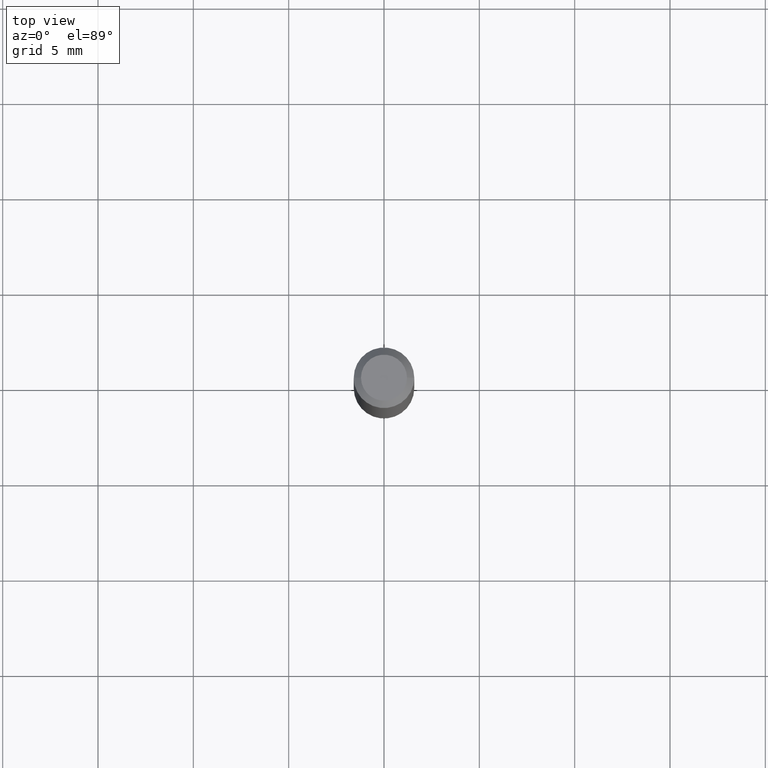
[diagram: clean part render]
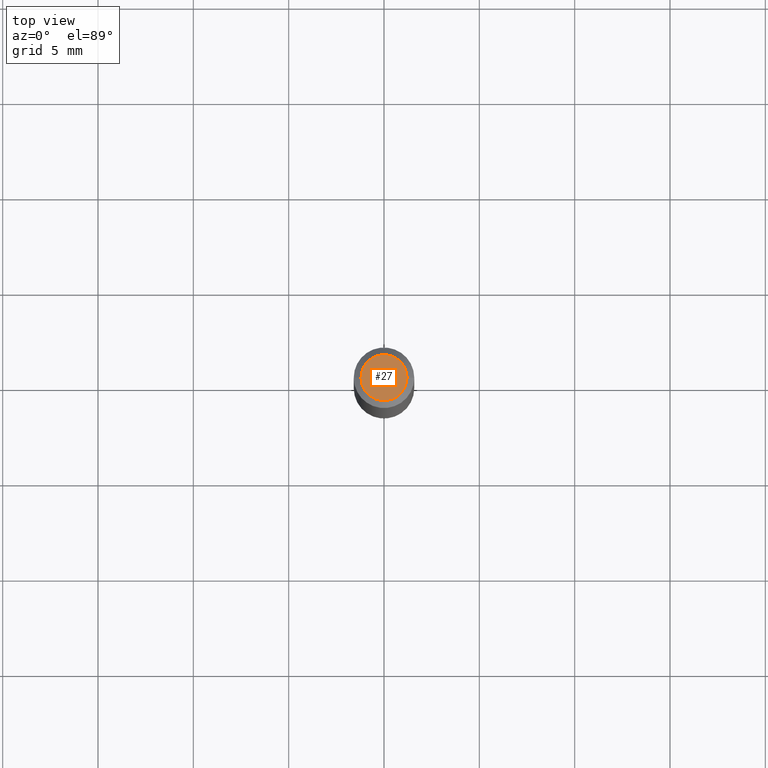
[diagram: same view with one face highlighted and labeled with its STEP entity id]
A machine part, top view. The second image highlights one B-rep face of the part: STEP entity #27.
In plain terms, the highlighted planar face has unit normal (0, -0, -1).
Its self-contained STEP definition (entity closure, byte-faithful):
#10 = ORIENTED_EDGE ( 'NONE', *, *, #393, .T. ) ;
#23 = CARTESIAN_POINT ( 'NONE',  ( 0.04749999999999999362, -4.035134999187568269E-16, 6.157024217726092898E-16 ) ) ;
#27 = ADVANCED_FACE ( 'NONE', ( #293 ), #392, .F. ) ;
#40 = VERTEX_POINT ( 'NONE', #79 ) ;
#71 = CIRCLE ( 'NONE', #456, 0.04749999999999999362 ) ;
#72 = CARTESIAN_POINT ( 'NONE',  ( 3.316907271900976096E-16, 0.04749999999999999362, 1.420058472912539912E-16 ) ) ;
#79 = CARTESIAN_POINT ( 'NONE',  ( -0.04749999999999999362, 3.578768372314221353E-16, 6.157024217726043594E-16 ) ) ;
#89 = DIRECTION ( 'NONE',  ( -2.445468806185136597E-29, 3.491481338843145583E-15, 1.000000000000000000 ) ) ;
#98 = CARTESIAN_POINT ( 'NONE',  ( -1.505681066337554235E-44, 2.149713515899588158E-30, 6.157024217726067260E-16 ) ) ;
#193 = AXIS2_PLACEMENT_3D ( 'NONE', #98, #381, #351 ) ;
#206 = AXIS2_PLACEMENT_3D ( 'NONE', #72, #209, #399 ) ;
#209 = DIRECTION ( 'NONE',  ( 2.438088387897960049E-29, -3.491481338843145188E-15, -1.000000000000000000 ) ) ;
#227 = CIRCLE ( 'NONE', #193, 0.04749999999999999362 ) ;
#252 = EDGE_LOOP ( 'NONE', ( #441, #10 ) ) ;
#293 = FACE_OUTER_BOUND ( 'NONE', #252, .T. ) ;
#296 = EDGE_CURVE ( 'NONE', #40, #355, #71, .T. ) ;
#351 = DIRECTION ( 'NONE',  ( 1.000000000000000000, -6.982962677686267499E-15, 4.852736867747366768E-29 ) ) ;
#355 = VERTEX_POINT ( 'NONE', #23 ) ;
#369 = DIRECTION ( 'NONE',  ( 1.000000000000000000, -6.982962677686267499E-15, 4.852736867747366768E-29 ) ) ;
#381 = DIRECTION ( 'NONE',  ( -2.445468806185136597E-29, 3.491481338843145583E-15, 1.000000000000000000 ) ) ;
#392 = PLANE ( 'NONE',  #206 ) ;
#393 = EDGE_CURVE ( 'NONE', #355, #40, #227, .T. ) ;
#399 = DIRECTION ( 'NONE',  ( -1.000000000000000000, 6.982962677686265922E-15, -4.876176775795935793E-29 ) ) ;
#413 = CARTESIAN_POINT ( 'NONE',  ( -1.505681066337554235E-44, 2.149713515899588158E-30, 6.157024217726067260E-16 ) ) ;
#441 = ORIENTED_EDGE ( 'NONE', *, *, #296, .T. ) ;
#456 = AXIS2_PLACEMENT_3D ( 'NONE', #413, #89, #369 ) ;